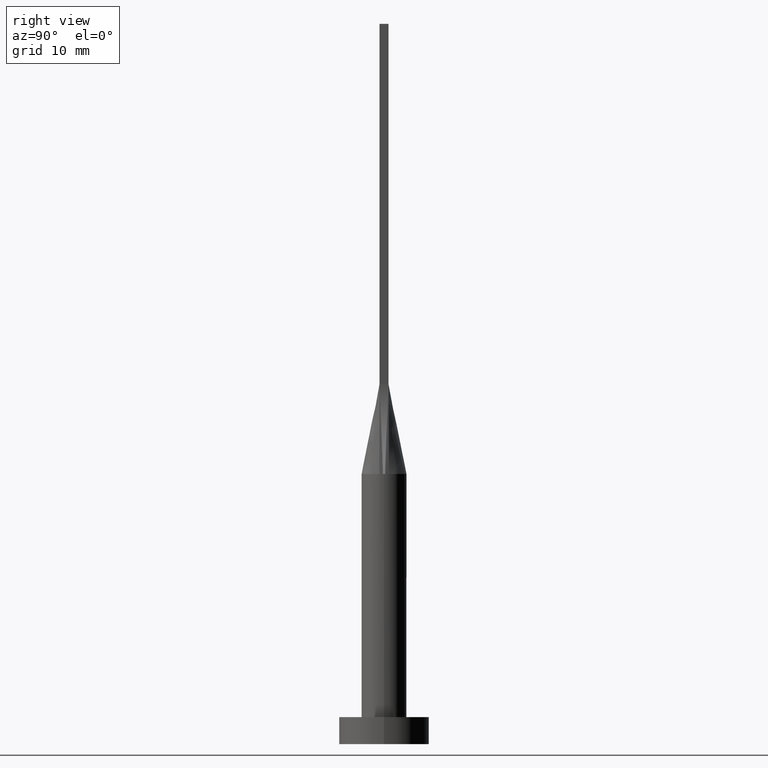
[diagram: clean part render]
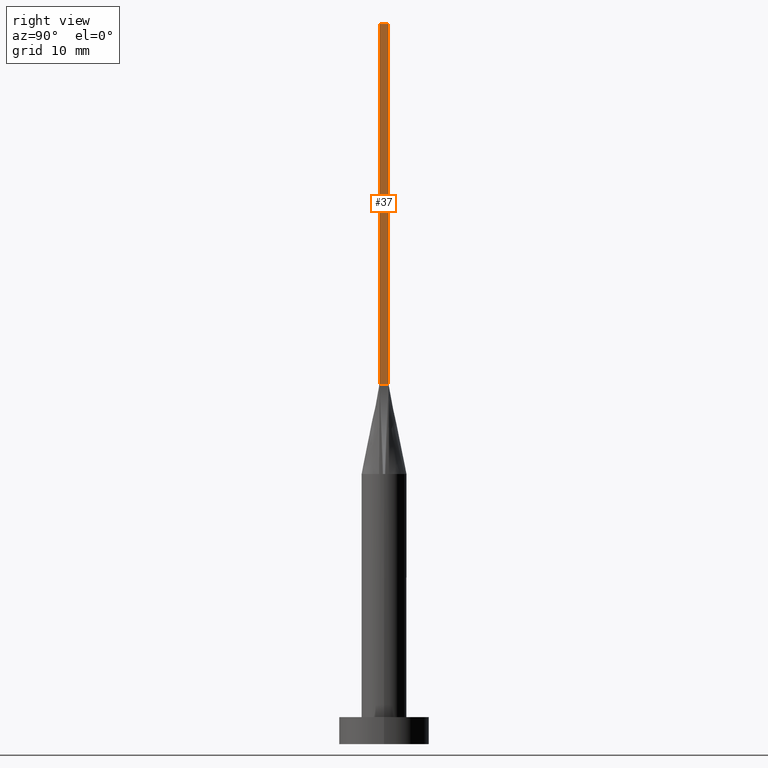
[diagram: same view with one face highlighted and labeled with its STEP entity id]
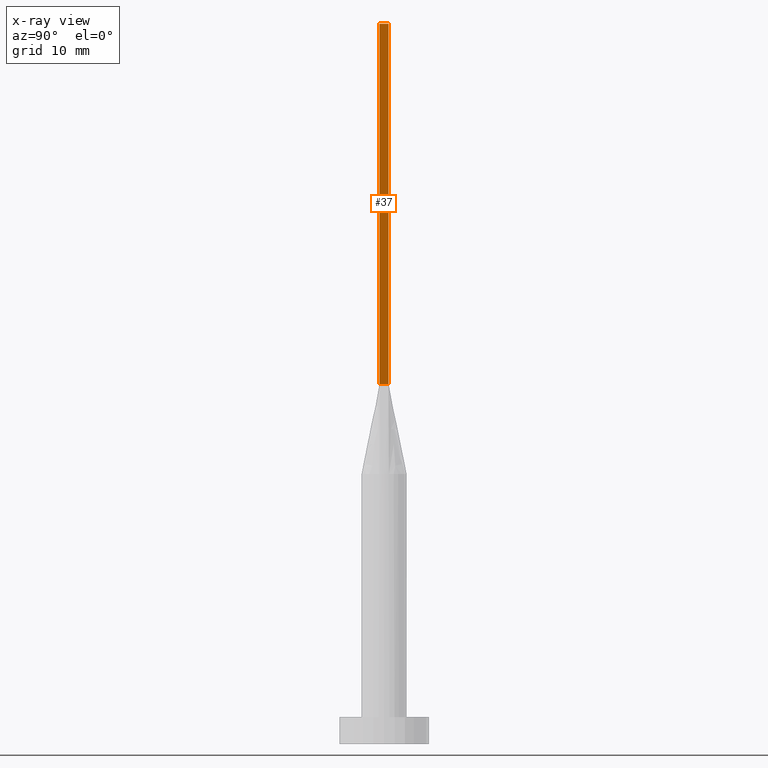
[diagram: x-ray of the same camera — body ghosted, the highlighted face saturated]
A machine part, right view. The second image highlights one B-rep face of the part: STEP entity #37.
The next image is the same camera in x-ray: the body ghosted, the highlighted face saturated — about 0% of this face is hidden behind the body in this view.
In plain terms, the highlighted planar face has unit normal (-1, -0, 0).
Its self-contained STEP definition (entity closure, byte-faithful):
#1 = LINE ( 'NONE', #450, #43 ) ;
#7 = CARTESIAN_POINT ( 'NONE',  ( 2.250000000000000000, -0.4999999999999997780, 80.00000000000000000 ) ) ;
#12 = LINE ( 'NONE', #379, #454 ) ;
#33 = ORIENTED_EDGE ( 'NONE', *, *, #170, .T. ) ;
#37 = ADVANCED_FACE ( 'NONE', ( #265 ), #411, .F. ) ;
#39 = DIRECTION ( 'NONE',  ( -1.000000000000000000, -4.336808689942017736E-16, 0.000000000000000000 ) ) ;
#43 = VECTOR ( 'NONE', #576, 1000.000000000000000 ) ;
#81 = DIRECTION ( 'NONE',  ( 4.336808689942017736E-16, -1.000000000000000000, 0.000000000000000000 ) ) ;
#110 = CARTESIAN_POINT ( 'NONE',  ( 2.249999999999999556, 0.5000000000000002220, 40.00000000000000000 ) ) ;
#115 = VERTEX_POINT ( 'NONE', #7 ) ;
#130 = ORIENTED_EDGE ( 'NONE', *, *, #469, .F. ) ;
#132 = DIRECTION ( 'NONE',  ( -0.000000000000000000, -0.000000000000000000, -1.000000000000000000 ) ) ;
#135 = EDGE_LOOP ( 'NONE', ( #33, #130, #391, #159 ) ) ;
#136 = VERTEX_POINT ( 'NONE', #573 ) ;
#159 = ORIENTED_EDGE ( 'NONE', *, *, #366, .T. ) ;
#161 = LINE ( 'NONE', #206, #283 ) ;
#170 = EDGE_CURVE ( 'NONE', #260, #200, #161, .T. ) ;
#173 = AXIS2_PLACEMENT_3D ( 'NONE', #415, #39, #81 ) ;
#200 = VERTEX_POINT ( 'NONE', #110 ) ;
#206 = CARTESIAN_POINT ( 'NONE',  ( 2.249999999999999556, 0.5000000000000002220, 40.00000000000000000 ) ) ;
#260 = VERTEX_POINT ( 'NONE', #384 ) ;
#265 = FACE_OUTER_BOUND ( 'NONE', #135, .T. ) ;
#283 = VECTOR ( 'NONE', #438, 1000.000000000000000 ) ;
#363 = EDGE_CURVE ( 'NONE', #115, #136, #1, .T. ) ;
#366 = EDGE_CURVE ( 'NONE', #115, #260, #447, .T. ) ;
#379 = CARTESIAN_POINT ( 'NONE',  ( 2.249999999999999556, 0.5000000000000002220, 80.00000000000000000 ) ) ;
#384 = CARTESIAN_POINT ( 'NONE',  ( 2.250000000000000000, -0.4999999999999997780, 40.00000000000000000 ) ) ;
#391 = ORIENTED_EDGE ( 'NONE', *, *, #363, .F. ) ;
#411 = PLANE ( 'NONE',  #173 ) ;
#415 = CARTESIAN_POINT ( 'NONE',  ( 2.250000000000000000, -0.4999999999999997780, 80.00000000000000000 ) ) ;
#438 = DIRECTION ( 'NONE',  ( -4.336808689942017736E-16, 1.000000000000000000, -0.000000000000000000 ) ) ;
#447 = LINE ( 'NONE', #504, #539 ) ;
#450 = CARTESIAN_POINT ( 'NONE',  ( 2.250000000000000000, -0.4999999999999997780, 80.00000000000000000 ) ) ;
#454 = VECTOR ( 'NONE', #517, 1000.000000000000000 ) ;
#469 = EDGE_CURVE ( 'NONE', #136, #200, #12, .T. ) ;
#504 = CARTESIAN_POINT ( 'NONE',  ( 2.250000000000000000, -0.4999999999999997780, 80.00000000000000000 ) ) ;
#517 = DIRECTION ( 'NONE',  ( -0.000000000000000000, -0.000000000000000000, -1.000000000000000000 ) ) ;
#539 = VECTOR ( 'NONE', #132, 1000.000000000000000 ) ;
#573 = CARTESIAN_POINT ( 'NONE',  ( 2.249999999999999556, 0.5000000000000002220, 80.00000000000000000 ) ) ;
#576 = DIRECTION ( 'NONE',  ( -4.336808689942017736E-16, 1.000000000000000000, 0.000000000000000000 ) ) ;